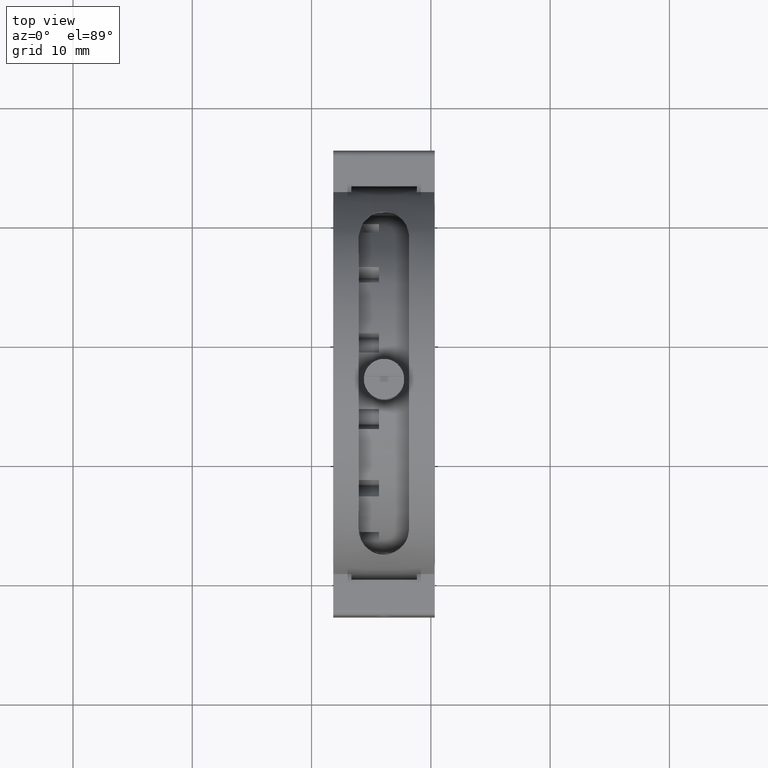
[diagram: clean part render]
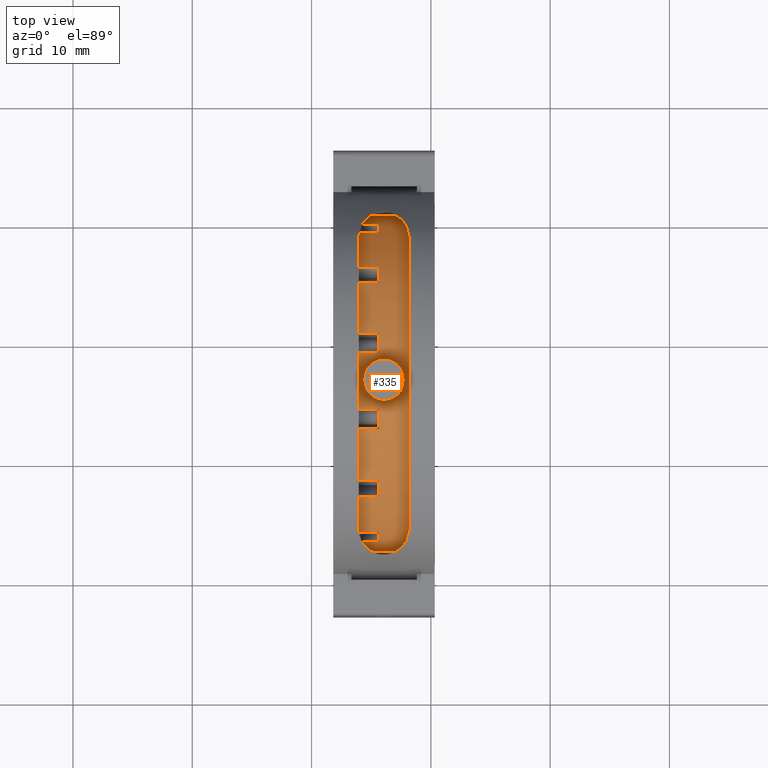
[diagram: same view with one face highlighted and labeled with its STEP entity id]
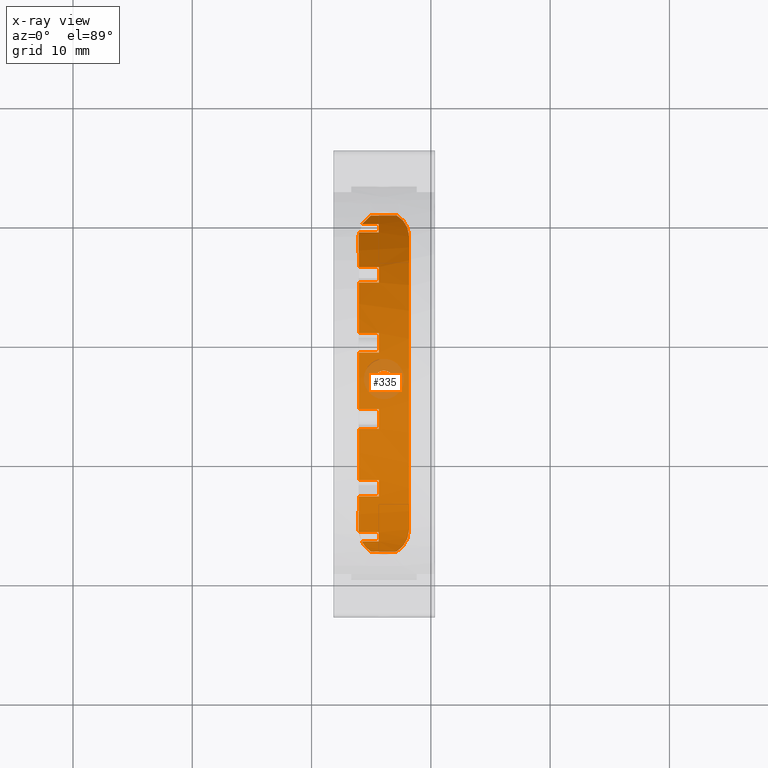
[diagram: x-ray of the same camera — body ghosted, the highlighted face saturated]
A machine part, top view. The second image highlights one B-rep face of the part: STEP entity #335.
The next image is the same camera in x-ray: the body ghosted, the highlighted face saturated — about 7% of this face is hidden behind the body in this view.
In plain terms, the highlighted face is a freeform B-spline surface patch.
Its self-contained STEP definition (entity closure, byte-faithful):
#49=FACE_BOUND('',#1005,.T.);
#335=ADVANCED_FACE('',(#657,#49),#5607,.T.);
#657=FACE_OUTER_BOUND('',#1004,.T.);
#1004=EDGE_LOOP('',(#2546,#2547,#2548,#2549,#2550,#2551,#2552,#2553,#2554,
#2555,#2556,#2557,#2558,#2559,#2560,#2561,#2562,#2563,#2564,#2565,#2566,
#2567,#2568,#2569,#2570,#2571,#2572,#2573,#2574,#2575,#2576,#2577,#2578));
#1005=EDGE_LOOP('',(#2579,#2580));
#2546=ORIENTED_EDGE('',*,*,#3796,.T.);
#2547=ORIENTED_EDGE('',*,*,#3690,.T.);
#2548=ORIENTED_EDGE('',*,*,#3714,.T.);
#2549=ORIENTED_EDGE('',*,*,#3691,.T.);
#2550=ORIENTED_EDGE('',*,*,#3692,.T.);
#2551=ORIENTED_EDGE('',*,*,#3693,.T.);
#2552=ORIENTED_EDGE('',*,*,#3694,.T.);
#2553=ORIENTED_EDGE('',*,*,#3618,.T.);
#2554=ORIENTED_EDGE('',*,*,#3695,.T.);
#2555=ORIENTED_EDGE('',*,*,#3175,.T.);
#2556=ORIENTED_EDGE('',*,*,#3696,.T.);
#2557=ORIENTED_EDGE('',*,*,#3697,.T.);
#2558=ORIENTED_EDGE('',*,*,#3698,.T.);
#2559=ORIENTED_EDGE('',*,*,#3131,.T.);
#2560=ORIENTED_EDGE('',*,*,#3699,.T.);
#2561=ORIENTED_EDGE('',*,*,#3700,.T.);
#2562=ORIENTED_EDGE('',*,*,#3701,.T.);
#2563=ORIENTED_EDGE('',*,*,#3086,.T.);
#2564=ORIENTED_EDGE('',*,*,#3702,.T.);
#2565=ORIENTED_EDGE('',*,*,#3715,.T.);
#2566=ORIENTED_EDGE('',*,*,#3262,.T.);
#2567=ORIENTED_EDGE('',*,*,#3703,.T.);
#2568=ORIENTED_EDGE('',*,*,#3280,.T.);
#2569=ORIENTED_EDGE('',*,*,#3704,.T.);
#2570=ORIENTED_EDGE('',*,*,#3705,.T.);
#2571=ORIENTED_EDGE('',*,*,#3706,.T.);
#2572=ORIENTED_EDGE('',*,*,#3707,.T.);
#2573=ORIENTED_EDGE('',*,*,#3708,.T.);
#2574=ORIENTED_EDGE('',*,*,#3709,.T.);
#2575=ORIENTED_EDGE('',*,*,#3710,.T.);
#2576=ORIENTED_EDGE('',*,*,#3684,.T.);
#2577=ORIENTED_EDGE('',*,*,#3711,.T.);
#2578=ORIENTED_EDGE('',*,*,#3226,.T.);
#2579=ORIENTED_EDGE('',*,*,#3713,.F.);
#2580=ORIENTED_EDGE('',*,*,#3712,.F.);
#3086=EDGE_CURVE('',#5087,#5092,#4482,.T.);
#3131=EDGE_CURVE('',#5189,#5193,#4505,.T.);
#3175=EDGE_CURVE('',#5211,#5215,#4528,.T.);
#3226=EDGE_CURVE('',#5237,#5242,#4554,.T.);
#3262=EDGE_CURVE('',#5107,#5263,#4570,.T.);
#3280=EDGE_CURVE('',#5266,#5270,#4582,.T.);
#3618=EDGE_CURVE('',#5442,#5212,#4780,.T.);
#3684=EDGE_CURVE('',#5447,#5238,#4846,.T.);
#3690=EDGE_CURVE('',#5245,#5464,#4226,.T.);
#3691=EDGE_CURVE('',#5244,#5440,#4852,.T.);
#3692=EDGE_CURVE('',#5440,#5439,#4227,.T.);
#3693=EDGE_CURVE('',#5439,#5448,#4853,.T.);
#3694=EDGE_CURVE('',#5448,#5442,#4228,.T.);
#3695=EDGE_CURVE('',#5212,#5211,#4229,.T.);
#3696=EDGE_CURVE('',#5215,#5216,#4230,.T.);
#3697=EDGE_CURVE('',#5216,#5190,#4854,.T.);
#3698=EDGE_CURVE('',#5190,#5189,#4231,.T.);
#3699=EDGE_CURVE('',#5193,#5194,#4232,.T.);
#3700=EDGE_CURVE('',#5194,#5088,#4855,.T.);
#3701=EDGE_CURVE('',#5088,#5087,#4233,.T.);
#3702=EDGE_CURVE('',#5092,#5465,#4234,.T.);
#3703=EDGE_CURVE('',#5263,#5266,#4235,.T.);
#3704=EDGE_CURVE('',#5270,#5449,#4856,.T.);
#3705=EDGE_CURVE('',#5449,#5450,#4857,.T.);
#3706=EDGE_CURVE('',#5450,#5451,#4858,.T.);
#3707=EDGE_CURVE('',#5451,#5452,#4236,.T.);
#3708=EDGE_CURVE('',#5452,#5453,#4859,.T.);
#3709=EDGE_CURVE('',#5453,#5454,#4860,.T.);
#3710=EDGE_CURVE('',#5454,#5447,#4861,.T.);
#3711=EDGE_CURVE('',#5238,#5237,#4237,.T.);
#3712=EDGE_CURVE('',#5049,#5048,#4862,.T.);
#3713=EDGE_CURVE('',#5048,#5049,#4863,.T.);
#3714=EDGE_CURVE('',#5464,#5244,#4238,.T.);
#3715=EDGE_CURVE('',#5465,#5107,#4239,.T.);
#3796=EDGE_CURVE('',#5242,#5245,#4894,.T.);
#4226=(
BOUNDED_CURVE()
B_SPLINE_CURVE(2,(#11738,#11739,#11740),.UNSPECIFIED.,.F.,.F.)
B_SPLINE_CURVE_WITH_KNOTS((3,3),(-4.55486450674857,-4.05258614970315),
 .UNSPECIFIED.)
CURVE()
GEOMETRIC_REPRESENTATION_ITEM()
RATIONAL_B_SPLINE_CURVE((1.,0.999847597741501,1.))
REPRESENTATION_ITEM('')
);
#4227=(
BOUNDED_CURVE()
B_SPLINE_CURVE(2,(#11743,#11744,#11745),.UNSPECIFIED.,.F.,.F.)
B_SPLINE_CURVE_WITH_KNOTS((3,3),(0.,1.69328517109294),.UNSPECIFIED.)
CURVE()
GEOMETRIC_REPRESENTATION_ITEM()
RATIONAL_B_SPLINE_CURVE((1.,0.998268396969243,1.))
REPRESENTATION_ITEM('')
);
#4228=(
BOUNDED_CURVE()
B_SPLINE_CURVE(2,(#11748,#11749,#11750),.UNSPECIFIED.,.F.,.F.)
B_SPLINE_CURVE_WITH_KNOTS((3,3),(-4.76251511705313,0.),.UNSPECIFIED.)
CURVE()
GEOMETRIC_REPRESENTATION_ITEM()
RATIONAL_B_SPLINE_CURVE((1.,0.986329190757631,1.))
REPRESENTATION_ITEM('')
);
#4229=(
BOUNDED_CURVE()
B_SPLINE_CURVE(2,(#11751,#11752,#11753),.UNSPECIFIED.,.F.,.F.)
B_SPLINE_CURVE_WITH_KNOTS((3,3),(0.,1.6932851710929),.UNSPECIFIED.)
CURVE()
GEOMETRIC_REPRESENTATION_ITEM()
RATIONAL_B_SPLINE_CURVE((1.,0.998268396969243,1.))
REPRESENTATION_ITEM('')
);
#4230=(
BOUNDED_CURVE()
B_SPLINE_CURVE(2,(#11754,#11755,#11756),.UNSPECIFIED.,.F.,.F.)
B_SPLINE_CURVE_WITH_KNOTS((3,3),(-4.7625151170531,0.),.UNSPECIFIED.)
CURVE()
GEOMETRIC_REPRESENTATION_ITEM()
RATIONAL_B_SPLINE_CURVE((1.,0.986329190757633,1.))
REPRESENTATION_ITEM('')
);
#4231=(
BOUNDED_CURVE()
B_SPLINE_CURVE(2,(#11759,#11760,#11761),.UNSPECIFIED.,.F.,.F.)
B_SPLINE_CURVE_WITH_KNOTS((3,3),(0.,1.69328517109298),.UNSPECIFIED.)
CURVE()
GEOMETRIC_REPRESENTATION_ITEM()
RATIONAL_B_SPLINE_CURVE((1.,0.998268396969242,1.))
REPRESENTATION_ITEM('')
);
#4232=(
BOUNDED_CURVE()
B_SPLINE_CURVE(2,(#11762,#11763,#11764),.UNSPECIFIED.,.F.,.F.)
B_SPLINE_CURVE_WITH_KNOTS((3,3),(-4.76251511705313,0.),.UNSPECIFIED.)
CURVE()
GEOMETRIC_REPRESENTATION_ITEM()
RATIONAL_B_SPLINE_CURVE((1.,0.986329190757632,1.))
REPRESENTATION_ITEM('')
);
#4233=(
BOUNDED_CURVE()
B_SPLINE_CURVE(2,(#11767,#11768,#11769),.UNSPECIFIED.,.F.,.F.)
B_SPLINE_CURVE_WITH_KNOTS((3,3),(0.,1.69328517109294),.UNSPECIFIED.)
CURVE()
GEOMETRIC_REPRESENTATION_ITEM()
RATIONAL_B_SPLINE_CURVE((1.,0.998268396969243,1.))
REPRESENTATION_ITEM('')
);
#4234=(
BOUNDED_CURVE()
B_SPLINE_CURVE(2,(#11770,#11771,#11772),.UNSPECIFIED.,.F.,.F.)
B_SPLINE_CURVE_WITH_KNOTS((3,3),(-4.76251511705317,-0.485314200244203),
 .UNSPECIFIED.)
CURVE()
GEOMETRIC_REPRESENTATION_ITEM()
RATIONAL_B_SPLINE_CURVE((1.,0.988968547379444,1.))
REPRESENTATION_ITEM('')
);
#4235=(
BOUNDED_CURVE()
B_SPLINE_CURVE(2,(#11773,#11774,#11775),.UNSPECIFIED.,.F.,.F.)
B_SPLINE_CURVE_WITH_KNOTS((3,3),(0.,1.69328517109295),.UNSPECIFIED.)
CURVE()
GEOMETRIC_REPRESENTATION_ITEM()
RATIONAL_B_SPLINE_CURVE((1.,0.998268396969242,1.))
REPRESENTATION_ITEM('')
);
#4236=(
BOUNDED_CURVE()
B_SPLINE_CURVE(2,(#11796,#11797,#11798,#11799,#11800),.UNSPECIFIED.,.F.,
 .F.)
B_SPLINE_CURVE_WITH_KNOTS((3,2,3),(0.,14.6952365510216,29.3904731020432),
 .UNSPECIFIED.)
CURVE()
GEOMETRIC_REPRESENTATION_ITEM()
RATIONAL_B_SPLINE_CURVE((1.,0.872355156941615,1.,0.872355156941615,1.))
REPRESENTATION_ITEM('')
);
#4237=(
BOUNDED_CURVE()
B_SPLINE_CURVE(2,(#11821,#11822,#11823),.UNSPECIFIED.,.F.,.F.)
B_SPLINE_CURVE_WITH_KNOTS((3,3),(0.,1.69328517109294),.UNSPECIFIED.)
CURVE()
GEOMETRIC_REPRESENTATION_ITEM()
RATIONAL_B_SPLINE_CURVE((1.,0.998268396969244,1.))
REPRESENTATION_ITEM('')
);
#4238=(
BOUNDED_CURVE()
B_SPLINE_CURVE(2,(#11876,#11877,#11878),.UNSPECIFIED.,.F.,.F.)
B_SPLINE_CURVE_WITH_KNOTS((3,3),(-4.05258614970315,0.),.UNSPECIFIED.)
CURVE()
GEOMETRIC_REPRESENTATION_ITEM()
RATIONAL_B_SPLINE_CURVE((1.,0.990094879707539,1.))
REPRESENTATION_ITEM('')
);
#4239=(
BOUNDED_CURVE()
B_SPLINE_CURVE(2,(#11879,#11880,#11881),.UNSPECIFIED.,.F.,.F.)
B_SPLINE_CURVE_WITH_KNOTS((3,3),(-0.485314200244203,0.),.UNSPECIFIED.)
CURVE()
GEOMETRIC_REPRESENTATION_ITEM()
RATIONAL_B_SPLINE_CURVE((1.,0.999857718248283,1.))
REPRESENTATION_ITEM('')
);
#4482=B_SPLINE_CURVE_WITH_KNOTS('',1,(#10120,#10121),.UNSPECIFIED.,.F.,
 .F.,(2,2),(0.,1.6923076923077),.UNSPECIFIED.);
#4505=B_SPLINE_CURVE_WITH_KNOTS('',1,(#10250,#10251),.UNSPECIFIED.,.F.,
 .F.,(2,2),(0.,1.6923076923077),.UNSPECIFIED.);
#4528=B_SPLINE_CURVE_WITH_KNOTS('',1,(#10377,#10378),.UNSPECIFIED.,.F.,
 .F.,(2,2),(0.,1.6923076923077),.UNSPECIFIED.);
#4554=B_SPLINE_CURVE_WITH_KNOTS('',1,(#10522,#10523),.UNSPECIFIED.,.F.,
 .F.,(2,2),(0.,1.6776069897154),.UNSPECIFIED.);
#4570=B_SPLINE_CURVE_WITH_KNOTS('',1,(#10632,#10633),.UNSPECIFIED.,.F.,
 .F.,(2,2),(0.,1.69230769230769),.UNSPECIFIED.);
#4582=B_SPLINE_CURVE_WITH_KNOTS('',1,(#10684,#10685),.UNSPECIFIED.,.F.,
 .F.,(2,2),(0.,1.46043187673832),.UNSPECIFIED.);
#4780=B_SPLINE_CURVE_WITH_KNOTS('',1,(#11594,#11595),.UNSPECIFIED.,.F.,
 .F.,(2,2),(0.,1.6923076923077),.UNSPECIFIED.);
#4846=B_SPLINE_CURVE_WITH_KNOTS('',1,(#11726,#11727),.UNSPECIFIED.,.F.,
 .F.,(2,2),(0.,1.41250564855645),.UNSPECIFIED.);
#4852=B_SPLINE_CURVE_WITH_KNOTS('',1,(#11741,#11742),.UNSPECIFIED.,.F.,
 .F.,(2,2),(0.,1.6923076923077),.UNSPECIFIED.);
#4853=B_SPLINE_CURVE_WITH_KNOTS('',1,(#11746,#11747),.UNSPECIFIED.,.F.,
 .F.,(2,2),(0.,1.6923076923077),.UNSPECIFIED.);
#4854=B_SPLINE_CURVE_WITH_KNOTS('',1,(#11757,#11758),.UNSPECIFIED.,.F.,
 .F.,(2,2),(0.,1.6923076923077),.UNSPECIFIED.);
#4855=B_SPLINE_CURVE_WITH_KNOTS('',1,(#11765,#11766),.UNSPECIFIED.,.F.,
 .F.,(2,2),(0.,1.6923076923077),.UNSPECIFIED.);
#4856=B_SPLINE_CURVE_WITH_KNOTS('',3,(#11776,#11777,#11778,#11779,#11780,
#11781),.UNSPECIFIED.,.F.,.F.,(4,2,4),(-0.337991206272094,-0.258843730164626,
-0.179725622571053),.UNSPECIFIED.);
#4857=B_SPLINE_CURVE_WITH_KNOTS('',1,(#11782,#11783),.UNSPECIFIED.,.F.,
 .F.,(2,2),(0.,2.19891797751923),.UNSPECIFIED.);
#4858=B_SPLINE_CURVE_WITH_KNOTS('',3,(#11784,#11785,#11786,#11787,#11788,
#11789,#11790,#11791,#11792,#11793,#11794,#11795),.UNSPECIFIED.,.F.,.F.,
(4,2,2,2,2,4),(-1.25606178315344,-1.11372971333613,-1.04256322486578,-1.00696554819904,
-0.988886108578349,-0.970806668957661),.UNSPECIFIED.);
#4859=B_SPLINE_CURVE_WITH_KNOTS('',3,(#11801,#11802,#11803,#11804,#11805,
#11806,#11807,#11808,#11809,#11810,#11811,#11812),.UNSPECIFIED.,.F.,.F.,
(4,2,2,2,2,4),(-0.464980736766835,-0.44690550771095,-0.428830278655065,
-0.393223836622203,-0.322066131106764,-0.179725622571053),.UNSPECIFIED.);
#4860=B_SPLINE_CURVE_WITH_KNOTS('',1,(#11813,#11814),.UNSPECIFIED.,.F.,
 .F.,(2,2),(0.,2.19891797751922),.UNSPECIFIED.);
#4861=B_SPLINE_CURVE_WITH_KNOTS('',3,(#11815,#11816,#11817,#11818,#11819,
#11820),.UNSPECIFIED.,.F.,.F.,(4,2,4),(-1.25606178315344,-1.18342098144437,
-1.11075912451705),.UNSPECIFIED.);
#4862=B_SPLINE_CURVE_WITH_KNOTS('',3,(#11824,#11825,#11826,#11827,#11828,
#11829,#11830,#11831,#11832,#11833,#11834,#11835,#11836,#11837,#11838,#11839,
#11840,#11841,#11842,#11843,#11844,#11845,#11846,#11847,#11848,#11849),
 .UNSPECIFIED.,.F.,.F.,(4,2,2,2,2,2,2,2,2,2,2,2,4),(-0.226067997110979,
-0.223712561546705,-0.22135712598243,-0.216646254853882,-0.207224512596784,
-0.188385411710928,-0.150711998073987,-0.113037757982513,-0.0941977214284029,
-0.0847768602326979,-0.0800664296348454,-0.0777112143359192,-0.0753559990369929),
 .UNSPECIFIED.);
#4863=B_SPLINE_CURVE_WITH_KNOTS('',3,(#11850,#11851,#11852,#11853,#11854,
#11855,#11856,#11857,#11858,#11859,#11860,#11861,#11862,#11863,#11864,#11865,
#11866,#11867,#11868,#11869,#11870,#11871,#11872,#11873,#11874,#11875),
 .UNSPECIFIED.,.F.,.F.,(4,2,2,2,2,2,2,2,2,2,2,2,4),(-0.376779995184965,
-0.374424559620691,-0.372069124056416,-0.367358252927868,-0.35793651067077,
-0.339097409784914,-0.301423996147972,-0.263749756056499,-0.244909719502389,
-0.235488858306684,-0.230778427708832,-0.228423212409905,-0.226067997110979),
 .UNSPECIFIED.);
#4894=B_SPLINE_CURVE_WITH_KNOTS('',3,(#12112,#12113,#12114,#12115),
 .UNSPECIFIED.,.F.,.F.,(4,4),(-1.01253223928483,-1.00037139176841),
 .UNSPECIFIED.);
#5048=VERTEX_POINT('',#9121);
#5049=VERTEX_POINT('',#9122);
#5087=VERTEX_POINT('',#9160);
#5088=VERTEX_POINT('',#9161);
#5092=VERTEX_POINT('',#9165);
#5107=VERTEX_POINT('',#9180);
#5189=VERTEX_POINT('',#9262);
#5190=VERTEX_POINT('',#9263);
#5193=VERTEX_POINT('',#9266);
#5194=VERTEX_POINT('',#9267);
#5211=VERTEX_POINT('',#9284);
#5212=VERTEX_POINT('',#9285);
#5215=VERTEX_POINT('',#9288);
#5216=VERTEX_POINT('',#9289);
#5237=VERTEX_POINT('',#9310);
#5238=VERTEX_POINT('',#9311);
#5242=VERTEX_POINT('',#9315);
#5244=VERTEX_POINT('',#9317);
#5245=VERTEX_POINT('',#9318);
#5263=VERTEX_POINT('',#9336);
#5266=VERTEX_POINT('',#9339);
#5270=VERTEX_POINT('',#9343);
#5439=VERTEX_POINT('',#9512);
#5440=VERTEX_POINT('',#9513);
#5442=VERTEX_POINT('',#9515);
#5447=VERTEX_POINT('',#9520);
#5448=VERTEX_POINT('',#9521);
#5449=VERTEX_POINT('',#9522);
#5450=VERTEX_POINT('',#9523);
#5451=VERTEX_POINT('',#9524);
#5452=VERTEX_POINT('',#9525);
#5453=VERTEX_POINT('',#9526);
#5454=VERTEX_POINT('',#9527);
#5464=VERTEX_POINT('',#9537);
#5465=VERTEX_POINT('',#9538);
#5607=(
BOUNDED_SURFACE()
B_SPLINE_SURFACE(2,1,((#8504,#8505),(#8506,#8507),(#8508,#8509),(#8510,
#8511),(#8512,#8513),(#8514,#8515),(#8516,#8517),(#8518,#8519),(#8520,#8521)),
 .UNSPECIFIED.,.T.,.F.,.F.)
B_SPLINE_SURFACE_WITH_KNOTS((3,2,2,2,3),(2,2),(0.,1.5707963267949,3.14159265358979,
4.71238898038469,6.28318530717959),(0.,5.29846153846155),.UNSPECIFIED.)
GEOMETRIC_REPRESENTATION_ITEM()
RATIONAL_B_SPLINE_SURFACE(((1.,1.),(0.707106781186548,0.707106781186548),
(1.,1.),(0.707106781186548,0.707106781186548),(1.,1.),(0.707106781186548,
0.707106781186548),(1.,1.),(0.707106781186548,0.707106781186548),(1.,1.)))
REPRESENTATION_ITEM('')
SURFACE()
);
#8504=CARTESIAN_POINT('',(18.7146153846154,16.5,-11.8613509823165));
#8505=CARTESIAN_POINT('',(13.4161538461538,16.5,-11.8613509823165));
#8506=CARTESIAN_POINT('',(18.7146153846154,2.1153846153846,-11.8613509823165));
#8507=CARTESIAN_POINT('',(13.4161538461538,2.1153846153846,-11.8613509823165));
#8508=CARTESIAN_POINT('',(18.7146153846154,2.1153846153846,2.52326440229894));
#8509=CARTESIAN_POINT('',(13.4161538461538,2.1153846153846,2.52326440229894));
#8510=CARTESIAN_POINT('',(18.7146153846154,2.1153846153846,16.9078797869143));
#8511=CARTESIAN_POINT('',(13.4161538461538,2.1153846153846,16.9078797869143));
#8512=CARTESIAN_POINT('',(18.7146153846154,16.5,16.9078797869143));
#8513=CARTESIAN_POINT('',(13.4161538461538,16.5,16.9078797869143));
#8514=CARTESIAN_POINT('',(18.7146153846154,30.8846153846154,16.9078797869143));
#8515=CARTESIAN_POINT('',(13.4161538461538,30.8846153846154,16.9078797869143));
#8516=CARTESIAN_POINT('',(18.7146153846154,30.8846153846154,2.52326440229894));
#8517=CARTESIAN_POINT('',(13.4161538461538,30.8846153846154,2.52326440229894));
#8518=CARTESIAN_POINT('',(18.7146153846154,30.8846153846154,-11.8613509823165));
#8519=CARTESIAN_POINT('',(13.4161538461538,30.8846153846154,-11.8613509823165));
#8520=CARTESIAN_POINT('',(18.7146153846154,16.5,-11.8613509823165));
#8521=CARTESIAN_POINT('',(13.4161538461538,16.5,-11.8613509823165));
#9121=CARTESIAN_POINT('',(15.226923076923,16.5,16.9078797869143));
#9122=CARTESIAN_POINT('',(16.9192307692307,16.5,16.9078797869143));
#9160=CARTESIAN_POINT('',(15.65,6.88531944866004,13.2225670739219));
#9161=CARTESIAN_POINT('',(15.65,8.208418880529,14.2777036616829));
#9165=CARTESIAN_POINT('',(13.9576923076923,6.88531944866004,13.2225670739219));
#9180=CARTESIAN_POINT('',(13.9576923076923,3.92948348857743,9.51606601534118));
#9262=CARTESIAN_POINT('',(15.65,12.4797255975301,16.3346565657327));
#9263=CARTESIAN_POINT('',(15.65,14.1296036027609,16.7112304539665));
#9266=CARTESIAN_POINT('',(13.9576923076923,12.4797255975301,16.3346565657327));
#9267=CARTESIAN_POINT('',(13.9576923076923,8.208418880529,14.2777036616829));
#9284=CARTESIAN_POINT('',(15.65,18.8703963972392,16.7112304539664));
#9285=CARTESIAN_POINT('',(15.65,20.5202744024699,16.3346565657327));
#9288=CARTESIAN_POINT('',(13.9576923076923,18.8703963972392,16.7112304539664));
#9289=CARTESIAN_POINT('',(13.9576923076923,14.1296036027609,16.7112304539665));
#9310=CARTESIAN_POINT('',(15.65,29.0705165114226,9.51606601534116));
#9311=CARTESIAN_POINT('',(15.65,29.8047813006985,7.99134946966014));
#9315=CARTESIAN_POINT('',(13.9723930102846,29.0705165114226,9.51606601534116));
#9317=CARTESIAN_POINT('',(13.9576923076923,26.11468055134,13.2225670739219));
#9318=CARTESIAN_POINT('',(13.9576923076923,28.9682649616827,9.69679411985005));
#9336=CARTESIAN_POINT('',(15.65,3.92948348857743,9.51606601534118));
#9339=CARTESIAN_POINT('',(15.65,3.19521869930155,7.99134946966014));
#9343=CARTESIAN_POINT('',(14.1895681232617,3.19521869930155,7.99134946966014));
#9512=CARTESIAN_POINT('',(15.65,24.791581119471,14.2777036616828));
#9513=CARTESIAN_POINT('',(15.65,26.11468055134,13.2225670739219));
#9515=CARTESIAN_POINT('',(13.9576923076923,20.5202744024699,16.3346565657327));
#9520=CARTESIAN_POINT('',(14.2374943514435,29.8047813006985,7.99134946966014));
#9521=CARTESIAN_POINT('',(13.9576923076923,24.791581119471,14.2777036616829));
#9522=CARTESIAN_POINT('',(14.9582333189327,2.40085696879118,5.37481232383724));
#9523=CARTESIAN_POINT('',(17.1571512964519,2.40085696879119,5.37481232383724));
#9524=CARTESIAN_POINT('',(18.1730769230769,4.17251852440139,9.93611542144715));
#9525=CARTESIAN_POINT('',(18.1730769230769,28.7102321771453,10.1276966587872));
#9526=CARTESIAN_POINT('',(17.1571512964519,30.5528992842647,5.59461287969885));
#9527=CARTESIAN_POINT('',(14.9582333189327,30.5528992842647,5.59461287969885));
#9537=CARTESIAN_POINT('',(13.9423076923077,28.7102321771453,10.1276966587872));
#9538=CARTESIAN_POINT('',(13.9423076923077,4.17251852440139,9.93611542144715));
#10120=CARTESIAN_POINT('',(15.65,6.88531944866004,13.2225670739219));
#10121=CARTESIAN_POINT('',(13.9576923076923,6.88531944866004,13.2225670739219));
#10250=CARTESIAN_POINT('',(15.65,12.4797255975301,16.3346565657327));
#10251=CARTESIAN_POINT('',(13.9576923076923,12.4797255975301,16.3346565657327));
#10377=CARTESIAN_POINT('',(15.65,18.8703963972392,16.7112304539664));
#10378=CARTESIAN_POINT('',(13.9576923076923,18.8703963972392,16.7112304539664));
#10522=CARTESIAN_POINT('',(15.65,29.0705165114226,9.51606601534116));
#10523=CARTESIAN_POINT('',(13.9723930102846,29.0705165114226,9.51606601534116));
#10632=CARTESIAN_POINT('',(13.9576923076923,3.92948348857743,9.51606601534118));
#10633=CARTESIAN_POINT('',(15.65,3.92948348857743,9.51606601534118));
#10684=CARTESIAN_POINT('',(15.65,3.19521869930155,7.99134946966014));
#10685=CARTESIAN_POINT('',(14.1895681232617,3.19521869930155,7.99134946966014));
#11594=CARTESIAN_POINT('',(13.9576923076923,20.5202744024699,16.3346565657327));
#11595=CARTESIAN_POINT('',(15.65,20.5202744024699,16.3346565657327));
#11726=CARTESIAN_POINT('',(14.2374943514435,29.8047813006985,7.99134946966014));
#11727=CARTESIAN_POINT('',(15.65,29.8047813006985,7.99134946966014));
#11738=CARTESIAN_POINT('',(13.9576923076923,28.9682649616827,9.69679411985004));
#11739=CARTESIAN_POINT('',(13.95,28.8430122525164,9.91449915564225));
#11740=CARTESIAN_POINT('',(13.9423076923077,28.7102321771453,10.1276966587872));
#11741=CARTESIAN_POINT('',(13.9576923076923,26.11468055134,13.2225670739219));
#11742=CARTESIAN_POINT('',(15.65,26.11468055134,13.2225670739219));
#11743=CARTESIAN_POINT('',(15.65,26.11468055134,13.2225670739219));
#11744=CARTESIAN_POINT('',(15.65,25.4842180952507,13.7891175586548));
#11745=CARTESIAN_POINT('',(15.65,24.791581119471,14.2777036616828));
#11746=CARTESIAN_POINT('',(15.65,24.791581119471,14.2777036616828));
#11747=CARTESIAN_POINT('',(13.9576923076923,24.791581119471,14.2777036616829));
#11748=CARTESIAN_POINT('',(13.9576923076923,24.791581119471,14.2777036616829));
#11749=CARTESIAN_POINT('',(13.9576923076923,22.8277562575744,15.6629856634466));
#11750=CARTESIAN_POINT('',(13.9576923076923,20.5202744024699,16.3346565657327));
#11751=CARTESIAN_POINT('',(15.65,20.5202744024699,16.3346565657327));
#11752=CARTESIAN_POINT('',(15.65,19.7064303144374,16.5715535067508));
#11753=CARTESIAN_POINT('',(15.65,18.8703963972392,16.7112304539664));
#11754=CARTESIAN_POINT('',(13.9576923076923,18.8703963972392,16.7112304539664));
#11755=CARTESIAN_POINT('',(13.9576923076923,16.5000000000001,17.1072547367694));
#11756=CARTESIAN_POINT('',(13.9576923076923,14.1296036027609,16.7112304539665));
#11757=CARTESIAN_POINT('',(13.9576923076923,14.1296036027609,16.7112304539665));
#11758=CARTESIAN_POINT('',(15.65,14.1296036027609,16.7112304539665));
#11759=CARTESIAN_POINT('',(15.65,14.1296036027609,16.7112304539665));
#11760=CARTESIAN_POINT('',(15.65,13.2935696855627,16.5715535067508));
#11761=CARTESIAN_POINT('',(15.65,12.4797255975301,16.3346565657327));
#11762=CARTESIAN_POINT('',(13.9576923076923,12.4797255975301,16.3346565657327));
#11763=CARTESIAN_POINT('',(13.9576923076923,10.1722437424256,15.6629856634466));
#11764=CARTESIAN_POINT('',(13.9576923076923,8.208418880529,14.2777036616829));
#11765=CARTESIAN_POINT('',(13.9576923076923,8.208418880529,14.2777036616829));
#11766=CARTESIAN_POINT('',(15.65,8.208418880529,14.2777036616829));
#11767=CARTESIAN_POINT('',(15.65,8.208418880529,14.2777036616829));
#11768=CARTESIAN_POINT('',(15.65,7.51578190474936,13.7891175586548));
#11769=CARTESIAN_POINT('',(15.65,6.88531944866004,13.2225670739219));
#11770=CARTESIAN_POINT('',(13.9576923076923,6.88531944866004,13.2225670739219));
#11771=CARTESIAN_POINT('',(13.95,5.28279841656012,11.7825014278115));
#11772=CARTESIAN_POINT('',(13.9423076923077,4.17251852440138,9.93611542144715));
#11773=CARTESIAN_POINT('',(15.65,3.92948348857744,9.51606601534118));
#11774=CARTESIAN_POINT('',(15.65,3.51742870190454,8.77534122632081));
#11775=CARTESIAN_POINT('',(15.65,3.19521869930155,7.99134946966014));
#11776=CARTESIAN_POINT('',(14.1895681232617,3.19521869930155,7.99134946966014));
#11777=CARTESIAN_POINT('',(14.314969100063,2.96356636866741,7.42769993624648));
#11778=CARTESIAN_POINT('',(14.4427743575165,2.81739571948613,6.9839727022514));
#11779=CARTESIAN_POINT('',(14.6997827378451,2.56991970796556,6.13772110233104));
#11780=CARTESIAN_POINT('',(14.8288524959025,2.47664512789891,5.74953795522532));
#11781=CARTESIAN_POINT('',(14.9582333189327,2.40085696879118,5.37481232383724));
#11782=CARTESIAN_POINT('',(14.9582333189327,2.40085696879118,5.37481232383724));
#11783=CARTESIAN_POINT('',(17.1571512964519,2.40085696879119,5.37481232383724));
#11784=CARTESIAN_POINT('',(17.1571512964519,2.40085696879119,5.37481232383724));
#11785=CARTESIAN_POINT('',(17.335774634856,2.50549020325504,5.89215903485731));
#11786=CARTESIAN_POINT('',(17.5141411495123,2.64136456761211,6.43309997520439));
#11787=CARTESIAN_POINT('',(17.7786794004858,2.95185928774246,7.36814850843844));
#11788=CARTESIAN_POINT('',(17.8665643227368,3.0726196048464,7.70128978250741));
#11789=CARTESIAN_POINT('',(17.9957290804158,3.3257977006868,8.30296377005573));
#11790=CARTESIAN_POINT('',(18.0382817803736,3.4202224266773,8.51705140997355));
#11791=CARTESIAN_POINT('',(18.0995782255822,3.61595305864544,8.92181318849925));
#11792=CARTESIAN_POINT('',(18.119708949898,3.68673696240086,9.06396597583038));
#11793=CARTESIAN_POINT('',(18.1555078741498,3.88135554458348,9.4319762107685));
#11794=CARTESIAN_POINT('',(18.1730769230769,3.97930939848155,9.61481098479504));
#11795=CARTESIAN_POINT('',(18.1730769230769,4.17251852440139,9.93611542144715));
#11796=CARTESIAN_POINT('',(18.1730769230769,4.17251852440139,9.93611542144715));
#11797=CARTESIAN_POINT('',(18.1730769230769,8.32672130034976,16.8445043306672));
#11798=CARTESIAN_POINT('',(18.1730769230769,16.3876937574214,16.9074413711488));
#11799=CARTESIAN_POINT('',(18.1730769230769,24.448666214493,16.9703784116305));
#11800=CARTESIAN_POINT('',(18.1730769230769,28.7102321771453,10.1276966587872));
#11801=CARTESIAN_POINT('',(18.1730769230769,28.7102321771453,10.1276966587872));
#11802=CARTESIAN_POINT('',(18.1730769230769,28.9083885048636,9.80952237736778));
#11803=CARTESIAN_POINT('',(18.1555152316248,29.0091706546312,9.628271558011));
#11804=CARTESIAN_POINT('',(18.119726618053,29.2094932375802,9.26338745705907));
#11805=CARTESIAN_POINT('',(18.0996018372956,29.2824785247011,9.12238020351947));
#11806=CARTESIAN_POINT('',(18.0383015148139,29.484550969272,8.72064803001318));
#11807=CARTESIAN_POINT('',(17.9957384543903,29.582331527225,8.50800800182914));
#11808=CARTESIAN_POINT('',(17.8665736840053,29.8448726260317,7.91036178363317));
#11809=CARTESIAN_POINT('',(17.778699752818,29.9708093895433,7.57918088931842));
#11810=CARTESIAN_POINT('',(17.5141623486487,30.2958809388413,6.64907711197728));
#11811=CARTESIAN_POINT('',(17.3357852295369,30.4401941166437,6.11029333115162));
#11812=CARTESIAN_POINT('',(17.1571512964519,30.5528992842647,5.59461287969885));
#11813=CARTESIAN_POINT('',(17.1571512964519,30.5528992842647,5.59461287969885));
#11814=CARTESIAN_POINT('',(14.9582333189327,30.5528992842647,5.59461287969885));
#11815=CARTESIAN_POINT('',(14.9582333189327,30.5528992842647,5.59461287969885));
#11816=CARTESIAN_POINT('',(14.8370915252507,30.4764675228015,5.94432501880179));
#11817=CARTESIAN_POINT('',(14.7162206184807,30.3843147862012,6.30599922936976));
#11818=CARTESIAN_POINT('',(14.475418865967,30.1478143107031,7.0862174712983));
#11819=CARTESIAN_POINT('',(14.3556138609939,30.0081248520128,7.49658001274495));
#11820=CARTESIAN_POINT('',(14.2374943514435,29.8047813006985,7.99134946966014));
#11821=CARTESIAN_POINT('',(15.65,29.8047813006985,7.99134946966014));
#11822=CARTESIAN_POINT('',(15.65,29.4825712980955,8.7753412263208));
#11823=CARTESIAN_POINT('',(15.65,29.0705165114226,9.51606601534116));
#11824=CARTESIAN_POINT('',(16.9192307692307,16.5,16.9078797869143));
#11825=CARTESIAN_POINT('',(16.9192307692307,16.6591479921605,16.9078797869143));
#11826=CARTESIAN_POINT('',(16.9060026311875,16.6517902395384,16.9071302881459));
#11827=CARTESIAN_POINT('',(16.8889345846249,16.7286817729461,16.9061133115232));
#11828=CARTESIAN_POINT('',(16.8802941301613,16.7570093548604,16.9056039011885));
#11829=CARTESIAN_POINT('',(16.8541471385022,16.8294631476552,16.9041874541622));
#11830=CARTESIAN_POINT('',(16.836457317128,16.8676674085274,16.9032208285256));
#11831=CARTESIAN_POINT('',(16.7835613728253,16.9700843540089,16.900358892635));
#11832=CARTESIAN_POINT('',(16.7481999141089,17.0163657492518,16.8986616914815));
#11833=CARTESIAN_POINT('',(16.6418858666728,17.1332621429298,16.8941453834115));
#11834=CARTESIAN_POINT('',(16.5707959673502,17.1900872403177,16.8913761989851));
#11835=CARTESIAN_POINT('',(16.3576217552857,17.3135096361752,16.8850939884565));
#11836=CARTESIAN_POINT('',(16.2153533273785,17.3461538461539,16.8829713433181));
#11837=CARTESIAN_POINT('',(15.9307973976093,17.3461538461539,16.8829713433181));
#11838=CARTESIAN_POINT('',(15.7885258465855,17.3135085727831,16.8850940736772));
#11839=CARTESIAN_POINT('',(15.5753450013834,17.1900785083549,16.8913766278918));
#11840=CARTESIAN_POINT('',(15.5042515512801,17.1332496160447,16.8941459861109));
#11841=CARTESIAN_POINT('',(15.3979373904848,17.0163447914782,16.8986624417969));
#11842=CARTESIAN_POINT('',(15.3625792644524,16.970062927753,16.900359582383));
#11843=CARTESIAN_POINT('',(15.3096882939911,16.8676493886463,16.9032212865467));
#11844=CARTESIAN_POINT('',(15.2920001311302,16.8294482040202,16.9041877918278));
#11845=CARTESIAN_POINT('',(15.2658556689641,16.7569964997673,16.9056041297303));
#11846=CARTESIAN_POINT('',(15.2572160494375,16.7286692841431,16.9061135055313));
#11847=CARTESIAN_POINT('',(15.2401496387779,16.6517811565893,16.9071303794404));
#11848=CARTESIAN_POINT('',(15.226923076923,16.6591331096528,16.9078797869143));
#11849=CARTESIAN_POINT('',(15.226923076923,16.5,16.9078797869143));
#11850=CARTESIAN_POINT('',(15.226923076923,16.5,16.9078797869143));
#11851=CARTESIAN_POINT('',(15.226923076923,16.3408520078395,16.9078797869143));
#11852=CARTESIAN_POINT('',(15.2401512149662,16.3482097604617,16.9071302881459));
#11853=CARTESIAN_POINT('',(15.2572192615289,16.271318227054,16.9061133115232));
#11854=CARTESIAN_POINT('',(15.2658597159925,16.2429906451396,16.9056039011885));
#11855=CARTESIAN_POINT('',(15.2920067076516,16.1705368523448,16.9041874541622));
#11856=CARTESIAN_POINT('',(15.3096965290258,16.1323325914727,16.9032208285256));
#11857=CARTESIAN_POINT('',(15.3625924733285,16.0299156459912,16.900358892635));
#11858=CARTESIAN_POINT('',(15.3979539320449,15.9836342507483,16.8986616914815));
#11859=CARTESIAN_POINT('',(15.504267979481,15.8667378570702,16.8941453834115));
#11860=CARTESIAN_POINT('',(15.5753578788036,15.8099127596823,16.8913761989851));
#11861=CARTESIAN_POINT('',(15.7885320908681,15.6864903638248,16.8850939884565));
#11862=CARTESIAN_POINT('',(15.9308005187753,15.6538461538462,16.8829713433181));
#11863=CARTESIAN_POINT('',(16.2153564485445,15.6538461538462,16.8829713433181));
#11864=CARTESIAN_POINT('',(16.3576279995683,15.6864914272169,16.8850940736772));
#11865=CARTESIAN_POINT('',(16.5708088447704,15.8099214916451,16.8913766278918));
#11866=CARTESIAN_POINT('',(16.6419022948737,15.8667503839552,16.8941459861109));
#11867=CARTESIAN_POINT('',(16.7482164556689,15.9836552085218,16.8986624417969));
#11868=CARTESIAN_POINT('',(16.7835745817013,16.0299370722471,16.900359582383));
#11869=CARTESIAN_POINT('',(16.8364655521627,16.1323506113538,16.9032212865467));
#11870=CARTESIAN_POINT('',(16.8541537150236,16.1705517959799,16.9041877918278));
#11871=CARTESIAN_POINT('',(16.8802981771897,16.2430035002327,16.9056041297303));
#11872=CARTESIAN_POINT('',(16.8889377967163,16.2713307158568,16.9061135055313));
#11873=CARTESIAN_POINT('',(16.9060042073759,16.3482188434107,16.9071303794404));
#11874=CARTESIAN_POINT('',(16.9192307692307,16.3408668903472,16.9078797869143));
#11875=CARTESIAN_POINT('',(16.9192307692307,16.5,16.9078797869143));
#11876=CARTESIAN_POINT('',(13.9423076923077,28.7102321771453,10.1276966587872));
#11877=CARTESIAN_POINT('',(13.95,27.6318912018965,11.8591636264067));
#11878=CARTESIAN_POINT('',(13.9576923076923,26.11468055134,13.2225670739219));
#11879=CARTESIAN_POINT('',(13.9423076923077,4.17251852440139,9.93611542144715));
#11880=CARTESIAN_POINT('',(13.95,4.04745593945738,9.72814184733424));
#11881=CARTESIAN_POINT('',(13.9576923076923,3.92948348857743,9.51606601534118));
#12112=CARTESIAN_POINT('',(13.9723930102846,29.0705165114226,9.51606601534116));
#12113=CARTESIAN_POINT('',(13.9667548990704,29.0369723771526,9.57636618071648));
#12114=CARTESIAN_POINT('',(13.9618342633836,29.0028915697026,9.63660983951432));
#12115=CARTESIAN_POINT('',(13.9576923076923,28.9682649616827,9.69679411985005));